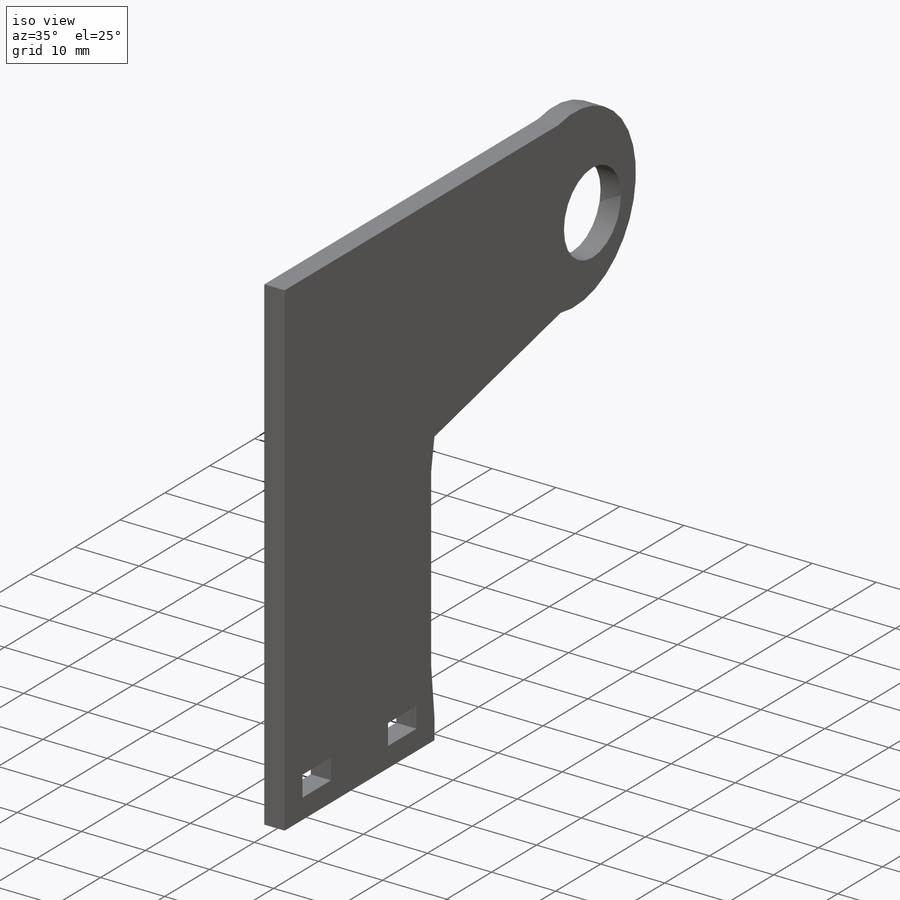
[diagram: iso view]
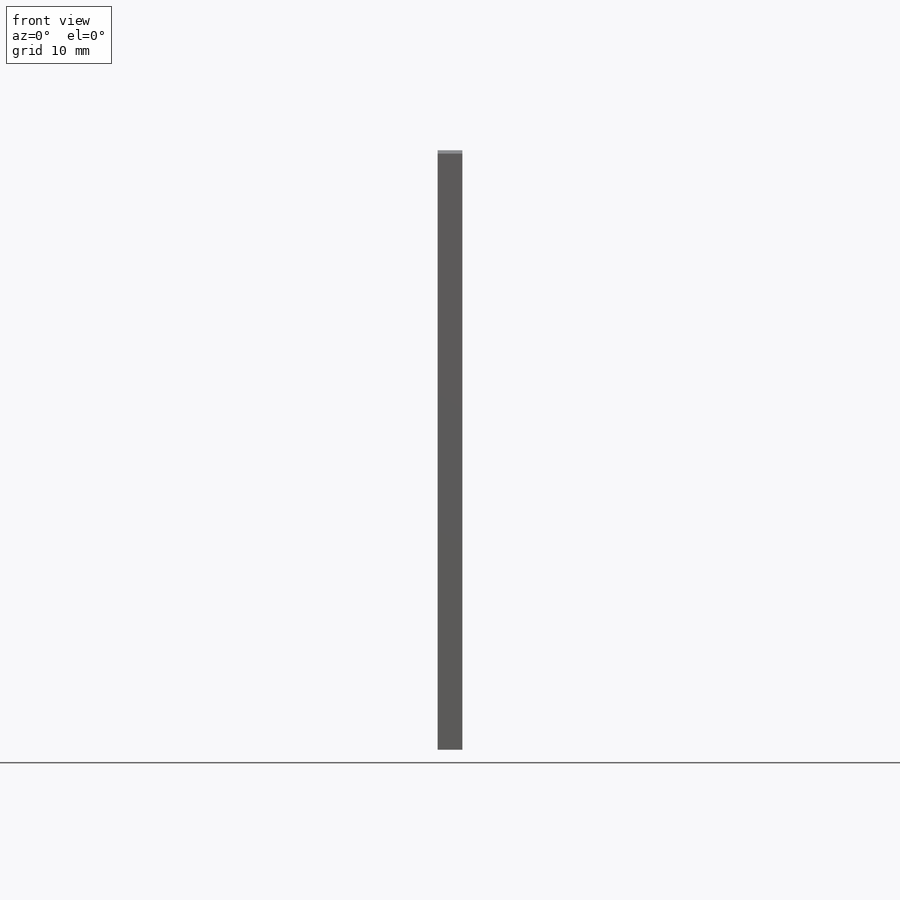
[diagram: front view]
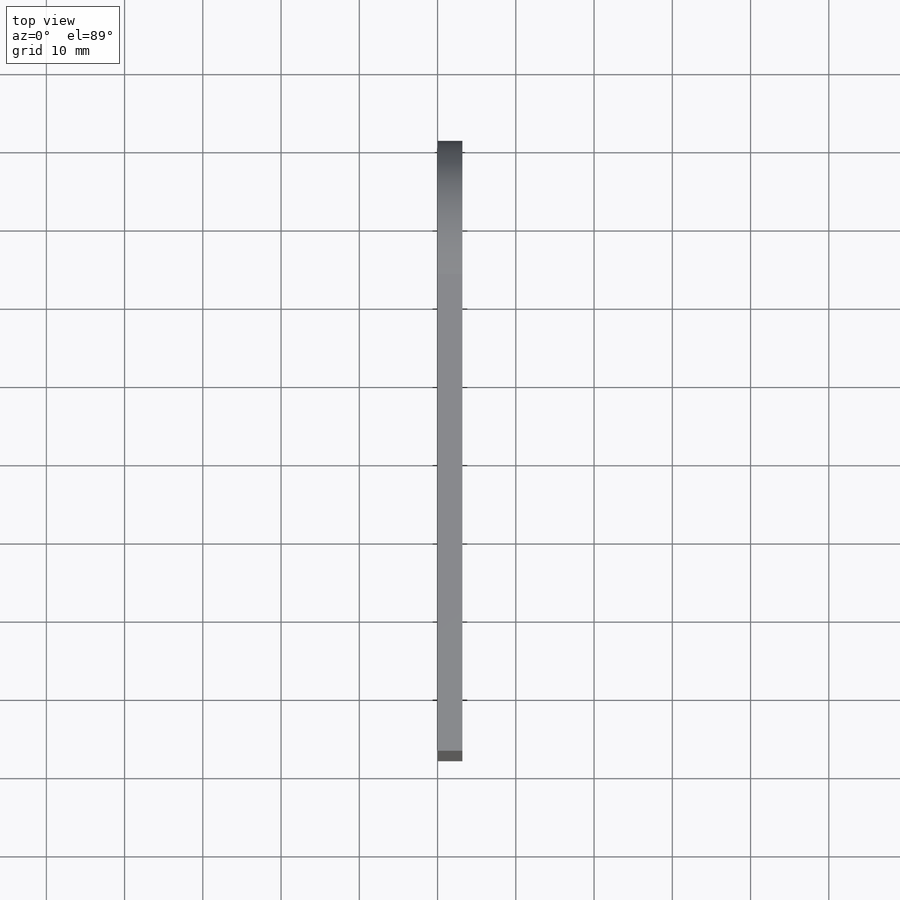
[diagram: top view]
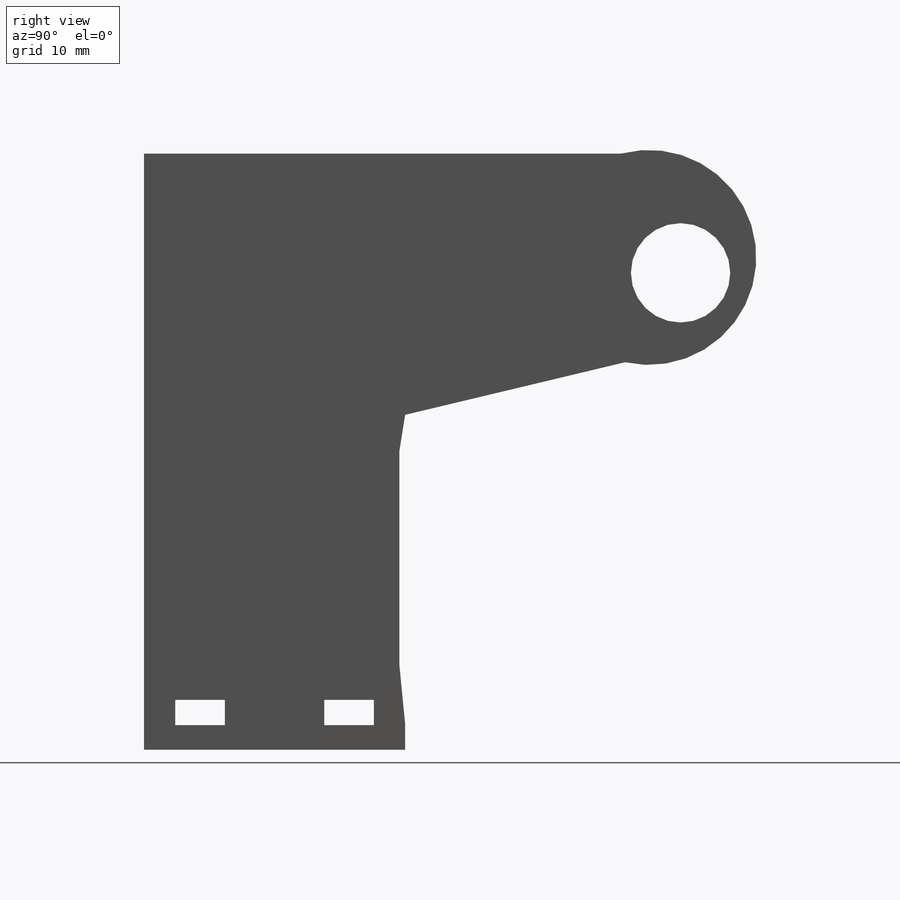
[diagram: right view]
SOLIDWORKS PART (.sldprt)
format: sldprt  version: not decoded by parser v0  size: 205,824 bytes
history: native  units: mm
features: sketch x5, cut_extrude x3, material x1, extrude x1 (+16 scaffold rows collapsed)
feature tree (26):
  scaffold x16  (default folders/planes/origin — collapsed)
  material  "Material <not specified>"
  sketch  "Sketch1"  dims[c1.D1=38.1mm c1.D2=76.2mm c1.D3=31.75mm c1.D4=27.94mm c1.D5=25.4mm c2.D5=100.0deg]
  extrude  "Boss-Extrude1"  Depth=3.175mm
  sketch  "Sketch2"  dims[c1.D1=3.429mm c1.D2=3.429mm c1.D3=3.429mm c1.D4=3.429mm c1.D5=9.91mm c1.D6=9.91mm c1.D7=41.275mm c1.D8=4.826mm c1.D9=4.826mm c1.D10=50.292mm c2.D1=16.51mm c2.D2=12.7mm]
  sketch  "Sketch3"  dims[D1=15.24mm D2=68.58mm]
  cut_extrude  "Cut-Extrude2"  [1 undecoded]
  sketch  "Sketch4"  dims[c1.D1=10.16mm c1.D2=4.7625mm c2.D1=6.35mm c2.D3=6.35mm c2.D4=6.35mm c2.D5=3.2258mm c2.D6=3.2258mm]
  sketch  "Sketch5"
  cut_extrude  "Cut-Extrude4"  [1 undecoded]
  cut_extrude  "Cut-Extrude3"  [1 undecoded]
decode coverage: 5 of 9 modeling features carry decoded parameters
note: 3 parameter values undecoded
summary: no parameter record found for 3 features
note: suppression state not decoded; provenance and decode notes live in map.json
